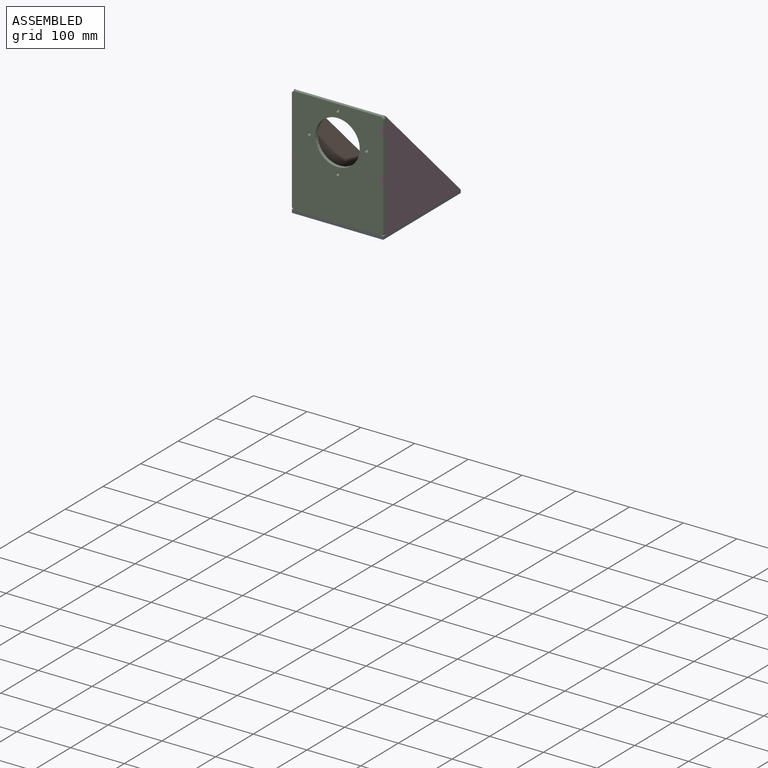
[diagram: assembled view]
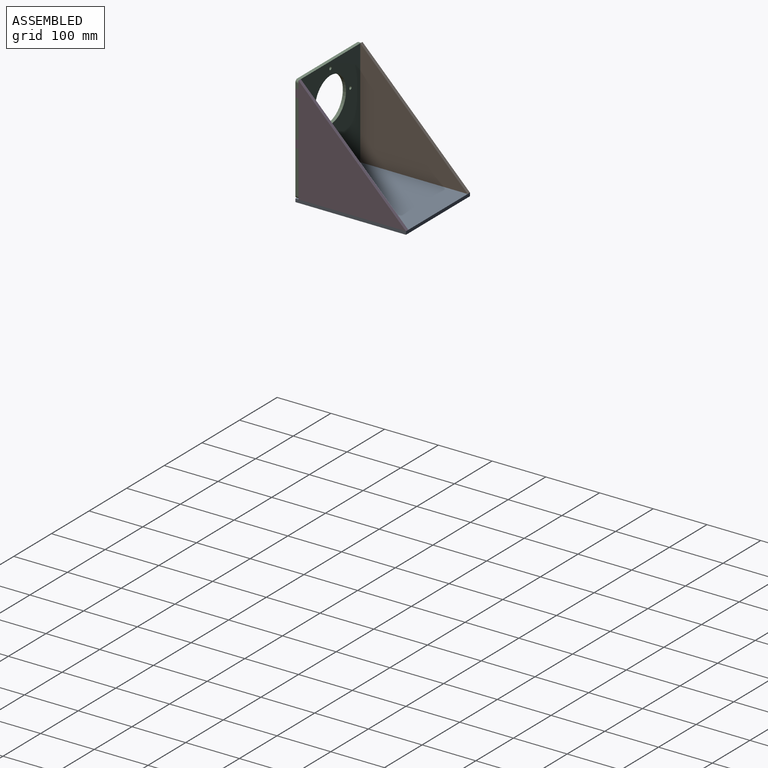
[diagram: assembled view, second angle]
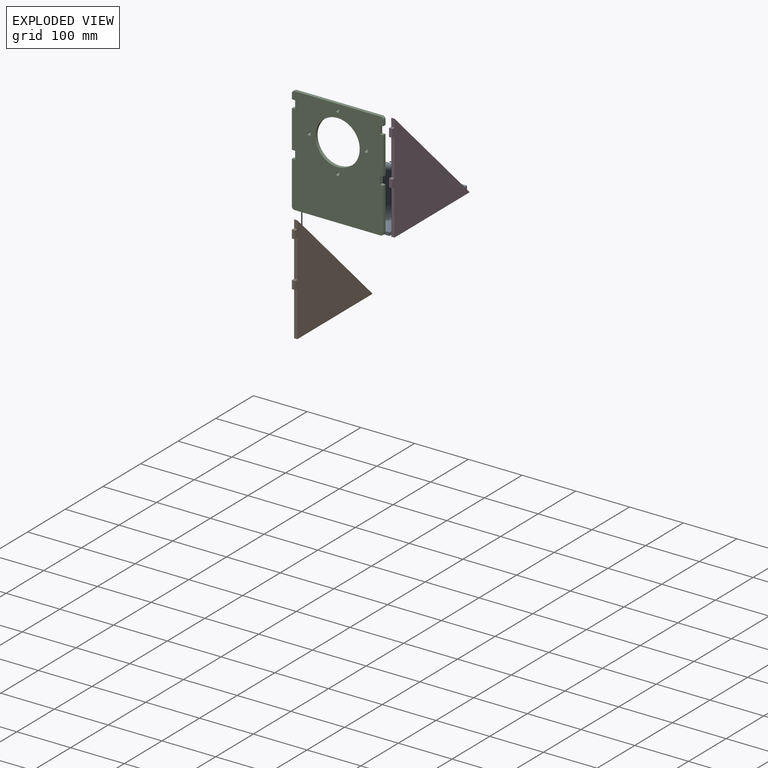
[diagram: exploded view]
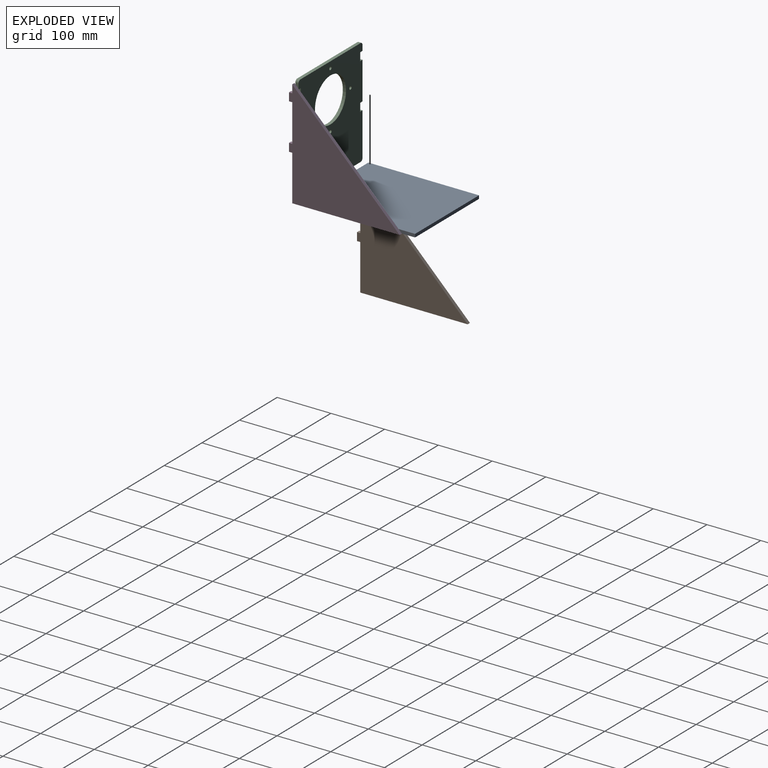
[diagram: exploded view, second angle]
ASSEMBLY  parts=4 mates=9
PART A: 6 faces, bbox 170x206x6 mm
  f0: plane 170x6mm, normal (0,1,0), area 1020mm2, adj f1,f3,f4,f5
  f1: plane 206x6mm, normal (-1,0,0), area 1236mm2, adj f0,f2,f4,f5
  f2: plane 170x6mm, normal (0,-1,0), area 1020mm2, adj f1,f3,f4,f5
  f3: plane 206x6mm, normal (1,0,0), area 1236mm2, adj f0,f2,f4,f5
  f4: plane 206x170mm, normal (0,0,1), area 35020mm2, adj f0,f1,f2,f3
  f5: plane 206x170mm, normal (0,0,-1), area 35020mm2, adj f0,f1,f2,f3
PART B: 13 faces, bbox 6x206x200 mm
  f0: plane 6x6mm, normal (0,0,1), area 36mm2, adj f1,f10,f11,f12
  f1: plane 15x6mm, normal (0,-1,0), area 90mm2, adj f0,f2,f11,f12
  f2: plane 6x6mm, normal (0,0,-1), area 36mm2, adj f1,f3,f11,f12
  f3: plane 70x6mm, normal (0,-1,0), area 420mm2, adj f2,f4,f11,f12
  f4: plane 6x6mm, normal (0,0,1), area 36mm2, adj f3,f5,f11,f12
  f5: plane 15x6mm, normal (0,-1,0), area 90mm2, adj f4,f6,f11,f12
  f6: plane 6x6mm, normal (0,0,-1), area 36mm2, adj f5,f7,f11,f12
  f7: plane 85x6mm, normal (0,-1,0), area 510mm2, adj f6,f8,f11,f12
  f8: plane 200x6mm, normal (0,0,-1), area 1200mm2, adj f7,f9,f11,f12
  f9: plane 200x200mm, normal (0,0.71,0.71), area 1697.1mm2, adj f8,f10,f11,f12
  f10: plane 15x6mm, normal (0,-1,0), area 90mm2, adj f0,f9,f11,f12
  f11: plane 206x200mm, normal (1,0,0), area 20180mm2, adj f0,f1,f2,f3,f4,f5,f6,f7
  f12: plane 206x200mm, normal (-1,0,0), area 20180mm2, adj f0,f1,f2,f3,f4,f5,f6,f7
PART C: 31 faces, bbox 170x6x200 mm
  f0: plane 6x6mm, normal (0,0,-1), area 36mm2, adj f1,f20,f25,f26
  f1: plane 10x6mm, normal (1,0,0), area 60mm2, adj f0,f25,f26,f27
  f2: plane 160x6mm, normal (0,0,1), area 960mm2, adj f25,f26,f27,f28
  f3: plane 10x6mm, normal (-1,0,0), area 60mm2, adj f4,f25,f26,f28
  f4: plane 6x6mm, normal (0,0,-1), area 36mm2, adj f3,f5,f25,f26
  f5: plane 15x6mm, normal (-1,0,0), area 90mm2, adj f4,f6,f25,f26
  f6: plane 6x6mm, normal (0,0,1), area 36mm2, adj f5,f7,f25,f26
  f7: plane 70x6mm, normal (-1,0,0), area 420mm2, adj f6,f8,f25,f26
  f8: plane 6x6mm, normal (0,0,-1), area 36mm2, adj f7,f9,f25,f26
  f9: plane 15x6mm, normal (-1,0,0), area 90mm2, adj f8,f10,f25,f26
  f10: plane 6x6mm, normal (0,0,1), area 36mm2, adj f9,f11,f25,f26
  f11: plane 80x6mm, normal (-1,0,0), area 480mm2, adj f10,f25,f26,f29
  f12: plane 160x6mm, normal (0,0,-1), area 960mm2, adj f25,f26,f29,f30
  f13: plane 80x6mm, normal (1,0,0), area 480mm2, adj f14,f25,f26,f30
  f14: plane 6x6mm, normal (0,0,1), area 36mm2, adj f13,f15,f25,f26
  f15: plane 15x6mm, normal (1,0,0), area 90mm2, adj f14,f16,f25,f26
  f16: plane 6x6mm, normal (0,0,-1), area 36mm2, adj f15,f17,f25,f26
  f17: plane 70x6mm, normal (1,0,0), area 420mm2, adj f16,f18,f25,f26
  f18: plane 6x6mm, normal (0,0,1), area 36mm2, adj f17,f20,f25,f26
  f19: cylinder r=3mm len=6mm, axis (0,1,0), area 113.1mm2, adj f25,f26
  f20: plane 15x6mm, normal (1,0,0), area 90mm2, adj f0,f18,f25,f26
  f21: cylinder r=3mm len=6mm, axis (0,1,0), area 113.1mm2, adj f25,f26
  f22: cylinder r=3mm len=6mm, axis (0,1,0), area 113.1mm2, adj f25,f26
  f23: cylinder r=3mm len=6mm, axis (0,1,0), area 113.1mm2, adj f25,f26
  f24: cylinder r=41.29mm len=82.58mm, axis (0,1,0), area 1556.6mm2, adj f25,f26
  f25: plane 200x170mm, normal (0,-1,0), area 28149.2mm2, adj f0,f1,f2,f3,f4,f5,f6,f7
  f26: plane 200x170mm, normal (0,1,0), area 28149.2mm2, adj f0,f1,f2,f3,f4,f5,f6,f7
  f27: cylinder r=5mm len=6mm, axis (0,-1,0), area 47.1mm2, adj f1,f2,f25,f26
  f28: cylinder r=5mm len=6mm, axis (0,1,0), area 47.1mm2, adj f2,f3,f25,f26
  f29: cylinder r=5mm len=6mm, axis (0,-1,0), area 47.1mm2, adj f11,f12,f25,f26
  f30: cylinder r=5mm len=6mm, axis (0,1,0), area 47.1mm2, adj f12,f13,f25,f26
PART D: same geometry as B
PLACE A t=(66.01,33.03,-100.24)mm
PLACE B t=(-18.99,120.3,28.47)mm
PLACE C t=(-18.99,-64.18,-94.24)mm
PLACE D t=(145.01,120.3,28.47)mm
MATE planar C.f22 <-> A.f2  axis (0,-1,0) through (66.01,-70.18,-12.44)mm
MATE planar D.f11 <-> C.f17  axis (1,0,0) through (151.01,1.86,-26.97)mm
MATE planar B.f0 <-> C.f4  axis (0,0,1) through (-15.99,-67.18,90.76)mm
MATE planar C.f7 <-> B.f12  axis (-1,0,0) through (-18.99,-67.18,40.76)mm
MATE planar A.f4 <-> B.f8  axis (0,0,1) through (66.01,32.82,-94.24)mm
MATE planar C.f25 <-> D.f1  axis (0,-1,0) through (145.01,-70.18,90.76)mm
MATE planar B.f1 <-> C.f25  axis (0,-1,0) through (-15.99,-70.18,83.26)mm
MATE planar C.f18 <-> D.f2  axis (0,0,1) through (148.01,-67.18,75.76)mm
MATE planar A.f1 <-> B.f12  axis (-1,0,0) through (-18.99,32.82,-97.24)mm
